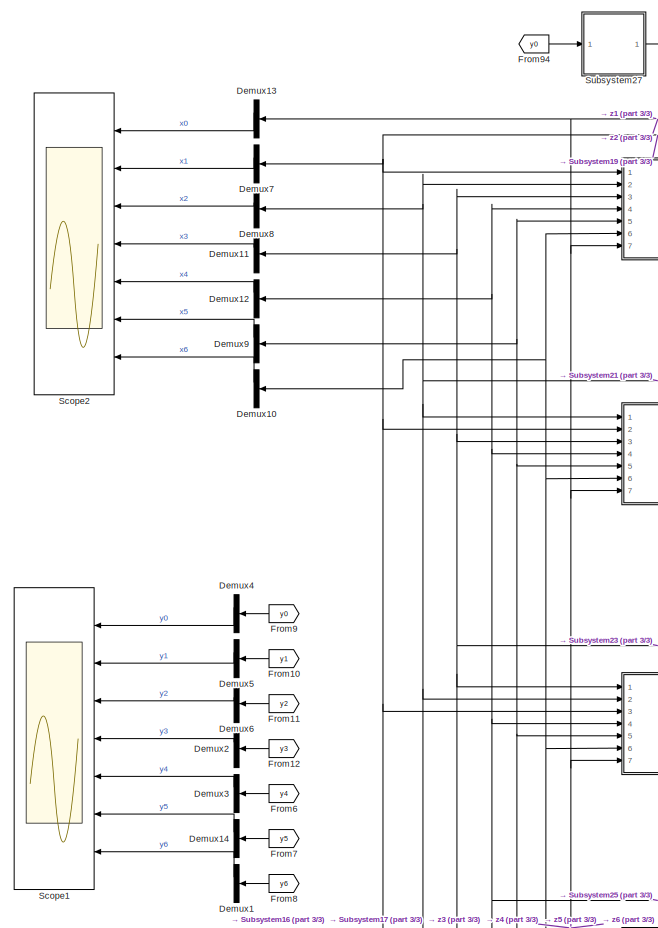
[diagram: root canvas - part 1/3, top left region]
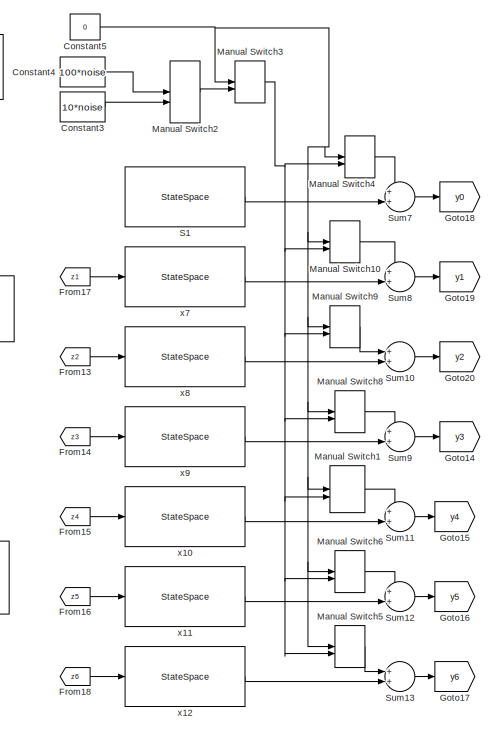
[diagram: root canvas - part 2/3, top right region]
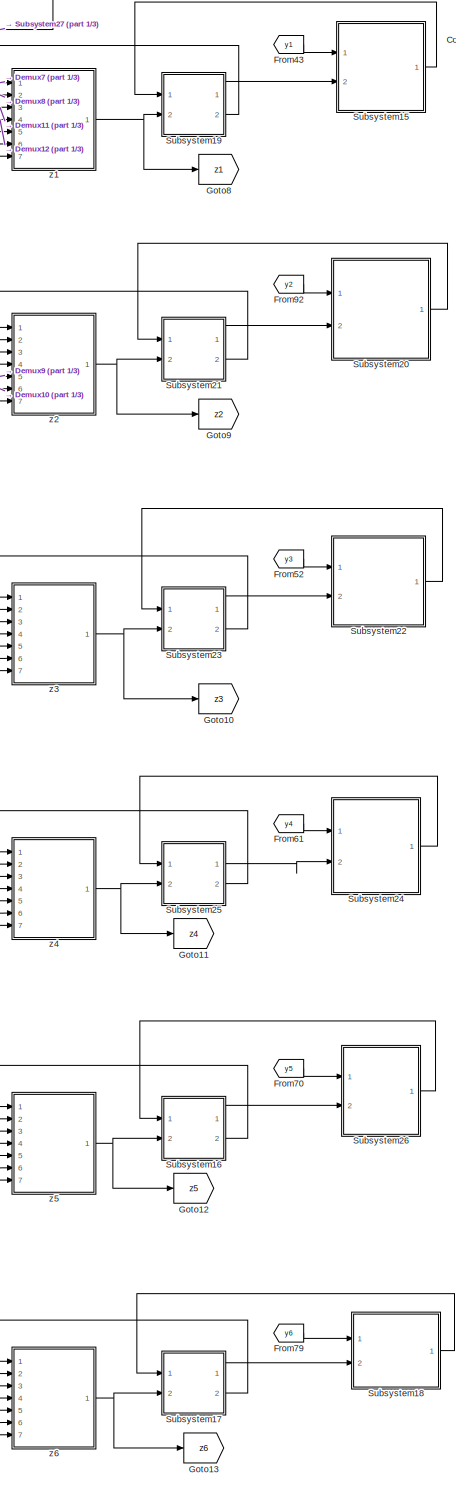
[diagram: root canvas - part 3/3, center side, full height]
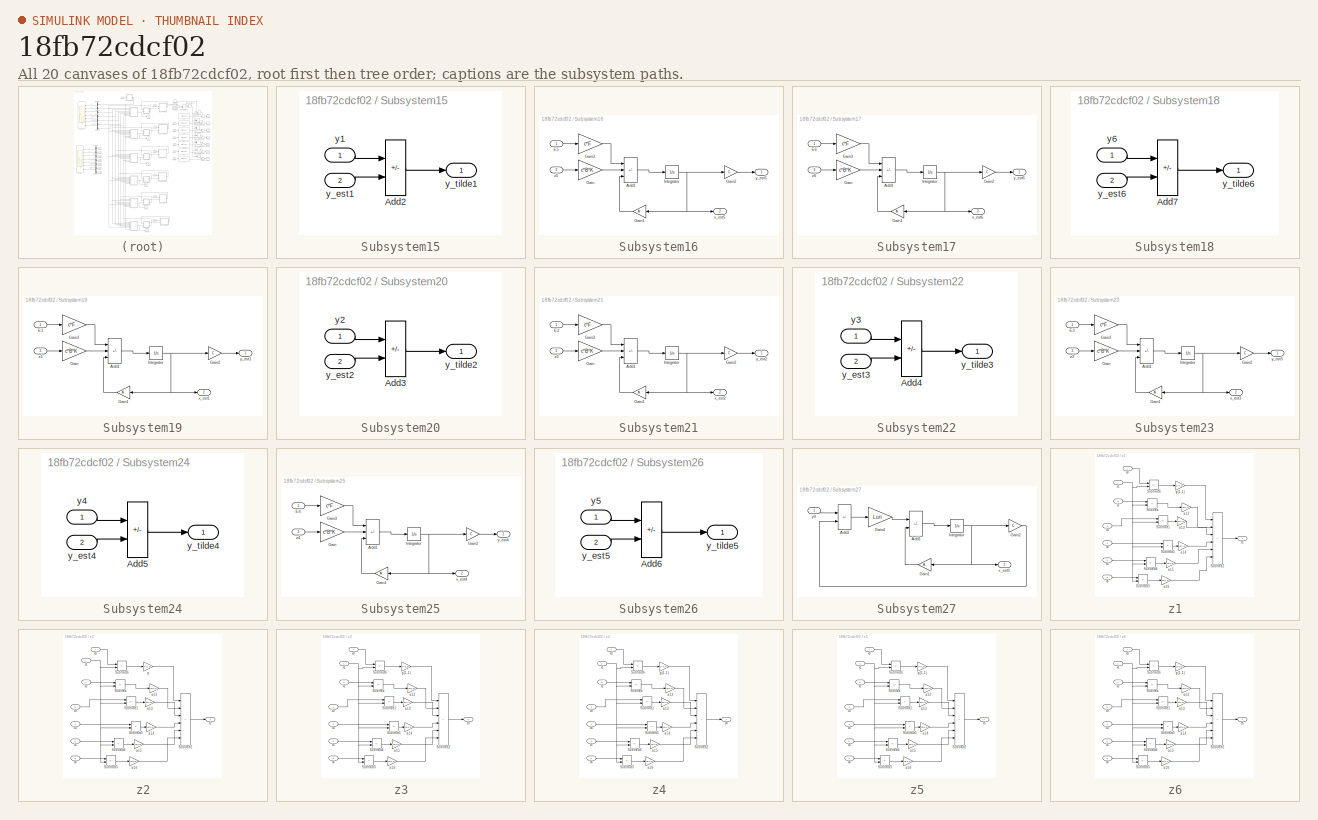
[diagram: thumbnail index - all 20 canvases of the model, root first then tree order]
MODEL slx_18fb72cdcf02
KIND model
CONFIG AbsTol = auto
CONFIG EnableMultiTasking = off
CONFIG FixedStep = auto
CONFIG MaxStep = auto
CONFIG MinStep = auto
CONFIG RelTol = 1e-3
CONFIG SampleTimeConstraint = Unconstrained
CONFIG SolverName = VariableStepAuto
CONFIG StartTime = 0.0
CONFIG StopTime = 10.0
BLOCK [Constant] Constant3
  Value = 10*noise
BLOCK [Constant] Constant4
  Value = 100*noise
BLOCK [Constant] Constant5
  Value = 0
BLOCK [Demux] Demux1
  NameLocation = top
  Outputs = 2
  Ports = [1, 2]
BLOCK [Demux] Demux10
  NameLocation = top
  Outputs = 2
  Ports = [1, 2]
BLOCK [Demux] Demux11
  NameLocation = top
  Outputs = 2
  Ports = [1, 2]
BLOCK [Demux] Demux12
  NameLocation = top
  Outputs = 2
  Ports = [1, 2]
BLOCK [Demux] Demux13
  NameLocation = top
  Outputs = 2
  Ports = [1, 2]
BLOCK [Demux] Demux14
  NameLocation = top
  Outputs = 2
  Ports = [1, 2]
BLOCK [Demux] Demux2
  NameLocation = top
  Outputs = 2
  Ports = [1, 2]
BLOCK [Demux] Demux3
  NameLocation = top
  Outputs = 2
  Ports = [1, 2]
BLOCK [Demux] Demux4
  NameLocation = top
  Outputs = 2
  Ports = [1, 2]
BLOCK [Demux] Demux5
  NameLocation = top
  Outputs = 2
  Ports = [1, 2]
BLOCK [Demux] Demux6
  NameLocation = top
  Outputs = 2
  Ports = [1, 2]
BLOCK [Demux] Demux7
  NameLocation = top
  Outputs = 2
  Ports = [1, 2]
BLOCK [Demux] Demux8
  NameLocation = top
  Outputs = 2
  Ports = [1, 2]
BLOCK [Demux] Demux9
  NameLocation = top
  Outputs = 2
  Ports = [1, 2]
BLOCK [From] From10
  GotoTag = y1
  NameLocation = top
BLOCK [From] From11
  GotoTag = y2
  NameLocation = top
BLOCK [From] From12
  GotoTag = y3
  NameLocation = top
BLOCK [From] From13
  GotoTag = z2
BLOCK [From] From14
  GotoTag = z3
BLOCK [From] From15
  GotoTag = z4
BLOCK [From] From16
  GotoTag = z5
BLOCK [From] From17
  GotoTag = z1
BLOCK [From] From18
  GotoTag = z6
BLOCK [From] From43
  GotoTag = y1
BLOCK [From] From52
  GotoTag = y3
BLOCK [From] From6
  GotoTag = y4
  NameLocation = top
BLOCK [From] From61
  GotoTag = y4
BLOCK [From] From7
  GotoTag = y5
  NameLocation = top
BLOCK [From] From70
  GotoTag = y5
BLOCK [From] From79
  GotoTag = y6
BLOCK [From] From8
  GotoTag = y6
  NameLocation = top
BLOCK [From] From9
  GotoTag = y0
  NameLocation = top
BLOCK [From] From92
  GotoTag = y2
BLOCK [From] From94
  GotoTag = y0
BLOCK [Goto] Goto10
  GotoTag = z3
BLOCK [Goto] Goto11
  GotoTag = z4
BLOCK [Goto] Goto12
  GotoTag = z5
BLOCK [Goto] Goto13
  GotoTag = z6
BLOCK [Goto] Goto14
  GotoTag = y3
BLOCK [Goto] Goto15
  GotoTag = y4
BLOCK [Goto] Goto16
  GotoTag = y5
BLOCK [Goto] Goto17
  GotoTag = y6
BLOCK [Goto] Goto18
  GotoTag = y0
BLOCK [Goto] Goto19
  GotoTag = y1
BLOCK [Goto] Goto20
  GotoTag = y2
BLOCK [Goto] Goto8
  GotoTag = z1
BLOCK [Goto] Goto9
  GotoTag = z2
BLOCK [ManualSwitch] Manual Switch1
BLOCK [ManualSwitch] Manual Switch10
  CurrentSetting = 0
BLOCK [ManualSwitch] Manual Switch2
BLOCK [ManualSwitch] Manual Switch3
  CurrentSetting = 0
BLOCK [ManualSwitch] Manual Switch4
BLOCK [ManualSwitch] Manual Switch5
BLOCK [ManualSwitch] Manual Switch6
BLOCK [ManualSwitch] Manual Switch8
BLOCK [ManualSwitch] Manual Switch9
  CurrentSetting = 0
BLOCK [StateSpace] S1
  A = A
  B = zeros(n,1)
  C = C
  D = zeros(n,1)
  InitialCondition = X0
  Ports = [1, 1]
BLOCK [Scope] Scope1
  Floating = off
  NameLocation = top
  NumInputPorts = 7
  Ports = [7]
  ScopeSpecificationString = Simulink.scopes.TimeScopeBlockCfg('CurrentConfiguration', extmgr.ConfigurationSet(extmgr.Configuration('Core','General UI',true),extmgr.Configuration('Core','Source UI',true),extmgr.Configuration('Sources','WiredSimulink',true,'DataLoggingVariableName','ScopeData1'),extmgr.Configuration('Visuals','Time Domain',true,'SerializedDisplays',{struct('MinYLimReal','-2677.65958','MaxYLimReal','6623.0896',...<+1688ch>
BLOCK [Scope] Scope2
  Floating = off
  NameLocation = top
  NumInputPorts = 7
  Ports = [7]
  ScopeSpecificationString = Simulink.scopes.TimeScopeBlockCfg('CurrentConfiguration', extmgr.ConfigurationSet(extmgr.Configuration('Core','General UI',true),extmgr.Configuration('Core','Source UI',true),extmgr.Configuration('Sources','WiredSimulink',true),extmgr.Configuration('Visuals','Time Domain',true,'SerializedDisplays',{struct('MinYLimReal','-3.78056','MaxYLimReal','33.7534','YLabelReal','','MinYLimMag','0.00000','MaxY...<+1630ch>
BLOCK [SubSystem] Subsystem15
  Ports = [2, 1]
  RequestExecContextInheritance = off
BLOCK [Sum] Subsystem15/Add2
  IconShape = rectangular
  Inputs = +-
  Ports = [2, 1]
BLOCK [Inport] Subsystem15/y1
BLOCK [Inport] Subsystem15/y_est1
  Port = 2
BLOCK [Outport] Subsystem15/y_tilde1
BLOCK [SubSystem] Subsystem16
  Ports = [2, 2]
  RequestExecContextInheritance = off
BLOCK [Sum] Subsystem16/Add1
  IconShape = rectangular
  Inputs = -++
  Ports = [3, 1]
BLOCK [Inport] Subsystem16/E5
BLOCK [Gain] Subsystem16/Gain
  Gain = c*B*K
  Multiplication = Matrix(K*u)
BLOCK [Gain] Subsystem16/Gain1
  Gain = A
  Multiplication = Matrix(K*u)
  NameLocation = top
BLOCK [Gain] Subsystem16/Gain2
  Gain = C
  Multiplication = Matrix(K*u)
BLOCK [Gain] Subsystem16/Gain3
  Gain = c*F
  Multiplication = Matrix(K*u)
BLOCK [Integrator] Subsystem16/Integrator
  Ports = [1, 1]
BLOCK [Outport] Subsystem16/x_est5
  Port = 2
BLOCK [Outport] Subsystem16/y_est5
BLOCK [Inport] Subsystem16/z5
  Port = 2
BLOCK [SubSystem] Subsystem17
  Ports = [2, 2]
  RequestExecContextInheritance = off
BLOCK [Sum] Subsystem17/Add1
  IconShape = rectangular
  Inputs = -++
  Ports = [3, 1]
BLOCK [Inport] Subsystem17/E6
BLOCK [Gain] Subsystem17/Gain
  Gain = c*B*K
  Multiplication = Matrix(K*u)
BLOCK [Gain] Subsystem17/Gain1
  Gain = A
  Multiplication = Matrix(K*u)
  NameLocation = top
BLOCK [Gain] Subsystem17/Gain2
  Gain = C
  Multiplication = Matrix(K*u)
BLOCK [Gain] Subsystem17/Gain3
  Gain = c*F
  Multiplication = Matrix(K*u)
BLOCK [Integrator] Subsystem17/Integrator
  Ports = [1, 1]
BLOCK [Outport] Subsystem17/x_est6
  Port = 2
BLOCK [Outport] Subsystem17/y_est6
BLOCK [Inport] Subsystem17/z6
  Port = 2
BLOCK [SubSystem] Subsystem18
  Ports = [2, 1]
  RequestExecContextInheritance = off
BLOCK [Sum] Subsystem18/Add7
  IconShape = rectangular
  Inputs = +-
  Ports = [2, 1]
BLOCK [Inport] Subsystem18/y6
BLOCK [Inport] Subsystem18/y_est6
  Port = 2
BLOCK [Outport] Subsystem18/y_tilde6
BLOCK [SubSystem] Subsystem19
  Ports = [2, 2]
  RequestExecContextInheritance = off
BLOCK [Sum] Subsystem19/Add1
  IconShape = rectangular
  Inputs = -++
  Ports = [3, 1]
BLOCK [Inport] Subsystem19/E1
BLOCK [Gain] Subsystem19/Gain
  Gain = c*B*K
  Multiplication = Matrix(K*u)
BLOCK [Gain] Subsystem19/Gain1
  Gain = A
  Multiplication = Matrix(K*u)
  NameLocation = top
BLOCK [Gain] Subsystem19/Gain2
  Gain = C
  Multiplication = Matrix(K*u)
BLOCK [Gain] Subsystem19/Gain3
  Gain = c*F
  Multiplication = Matrix(K*u)
BLOCK [Integrator] Subsystem19/Integrator
  Ports = [1, 1]
BLOCK [Outport] Subsystem19/x_est1
  Port = 2
BLOCK [Outport] Subsystem19/y_est1
BLOCK [Inport] Subsystem19/z1
  Port = 2
BLOCK [SubSystem] Subsystem20
  Ports = [2, 1]
  RequestExecContextInheritance = off
BLOCK [Sum] Subsystem20/Add3
  IconShape = rectangular
  Inputs = +-
  Ports = [2, 1]
BLOCK [Inport] Subsystem20/y2
BLOCK [Inport] Subsystem20/y_est2
  Port = 2
BLOCK [Outport] Subsystem20/y_tilde2
BLOCK [SubSystem] Subsystem21
  Ports = [2, 2]
  RequestExecContextInheritance = off
BLOCK [Sum] Subsystem21/Add1
  IconShape = rectangular
  Inputs = -++
  Ports = [3, 1]
BLOCK [Inport] Subsystem21/E2
BLOCK [Gain] Subsystem21/Gain
  Gain = c*B*K
  Multiplication = Matrix(K*u)
BLOCK [Gain] Subsystem21/Gain1
  Gain = A
  Multiplication = Matrix(K*u)
  NameLocation = top
BLOCK [Gain] Subsystem21/Gain2
  Gain = C
  Multiplication = Matrix(K*u)
BLOCK [Gain] Subsystem21/Gain3
  Gain = c*F
  Multiplication = Matrix(K*u)
BLOCK [Integrator] Subsystem21/Integrator
  Ports = [1, 1]
BLOCK [Outport] Subsystem21/x_est2
  Port = 2
BLOCK [Outport] Subsystem21/y_est2
BLOCK [Inport] Subsystem21/z2
  Port = 2
BLOCK [SubSystem] Subsystem22
  Ports = [2, 1]
  RequestExecContextInheritance = off
BLOCK [Sum] Subsystem22/Add4
  IconShape = rectangular
  Inputs = +-
  Ports = [2, 1]
BLOCK [Inport] Subsystem22/y3
BLOCK [Inport] Subsystem22/y_est3
  Port = 2
BLOCK [Outport] Subsystem22/y_tilde3
BLOCK [SubSystem] Subsystem23
  Ports = [2, 2]
  RequestExecContextInheritance = off
BLOCK [Sum] Subsystem23/Add1
  IconShape = rectangular
  Inputs = -++
  Ports = [3, 1]
BLOCK [Inport] Subsystem23/E3
BLOCK [Gain] Subsystem23/Gain
  Gain = c*B*K
  Multiplication = Matrix(K*u)
BLOCK [Gain] Subsystem23/Gain1
  Gain = A
  Multiplication = Matrix(K*u)
  NameLocation = top
BLOCK [Gain] Subsystem23/Gain2
  Gain = C
  Multiplication = Matrix(K*u)
BLOCK [Gain] Subsystem23/Gain3
  Gain = c*F
  Multiplication = Matrix(K*u)
BLOCK [Integrator] Subsystem23/Integrator
  Ports = [1, 1]
BLOCK [Outport] Subsystem23/x_est3
  Port = 2
BLOCK [Outport] Subsystem23/y_est3
BLOCK [Inport] Subsystem23/z3
  Port = 2
BLOCK [SubSystem] Subsystem24
  Ports = [2, 1]
  RequestExecContextInheritance = off
BLOCK [Sum] Subsystem24/Add5
  IconShape = rectangular
  Inputs = +-
  Ports = [2, 1]
BLOCK [Inport] Subsystem24/y4
BLOCK [Inport] Subsystem24/y_est4
  Port = 2
BLOCK [Outport] Subsystem24/y_tilde4
BLOCK [SubSystem] Subsystem25
  Ports = [2, 2]
  RequestExecContextInheritance = off
BLOCK [Sum] Subsystem25/Add1
  IconShape = rectangular
  Inputs = -++
  Ports = [3, 1]
BLOCK [Inport] Subsystem25/E4
BLOCK [Gain] Subsystem25/Gain
  Gain = c*B*K
  Multiplication = Matrix(K*u)
BLOCK [Gain] Subsystem25/Gain1
  Gain = A
  Multiplication = Matrix(K*u)
  NameLocation = top
BLOCK [Gain] Subsystem25/Gain2
  Gain = C
  Multiplication = Matrix(K*u)
BLOCK [Gain] Subsystem25/Gain3
  Gain = c*F
  Multiplication = Matrix(K*u)
BLOCK [Integrator] Subsystem25/Integrator
  Ports = [1, 1]
BLOCK [Outport] Subsystem25/x_est4
  Port = 2
BLOCK [Outport] Subsystem25/y_est4
BLOCK [Inport] Subsystem25/z4
  Port = 2
BLOCK [SubSystem] Subsystem26
  Ports = [2, 1]
  RequestExecContextInheritance = off
BLOCK [Sum] Subsystem26/Add6
  IconShape = rectangular
  Inputs = +-
  Ports = [2, 1]
BLOCK [Inport] Subsystem26/y5
BLOCK [Inport] Subsystem26/y_est5
  Port = 2
BLOCK [Outport] Subsystem26/y_tilde5
BLOCK [SubSystem] Subsystem27
  Ports = [1, 1]
  RequestExecContextInheritance = off
BLOCK [Sum] Subsystem27/Add1
  IconShape = rectangular
  Inputs = -+
  Ports = [2, 1]
BLOCK [Sum] Subsystem27/Add2
  IconShape = rectangular
  Inputs = -+
  Ports = [2, 1]
BLOCK [Gain] Subsystem27/Gain1
  Gain = A
  Multiplication = Matrix(K*u)
  NameLocation = top
BLOCK [Gain] Subsystem27/Gain2
  Gain = C
  Multiplication = Matrix(K*u)
BLOCK [Gain] Subsystem27/Gain4
  Gain = Lun
  Multiplication = Matrix(K*u)
BLOCK [Integrator] Subsystem27/Integrator
  InitialCondition = X0
  Ports = [1, 1]
BLOCK [Outport] Subsystem27/x_est0
BLOCK [Inport] Subsystem27/y0
BLOCK [Sum] Sum10
  Inputs = ++|
  Ports = [2, 1]
BLOCK [Sum] Sum11
  Inputs = ++|
  Ports = [2, 1]
BLOCK [Sum] Sum12
  Inputs = ++|
  Ports = [2, 1]
BLOCK [Sum] Sum13
  Inputs = ++|
  Ports = [2, 1]
BLOCK [Sum] Sum7
  Inputs = ++|
  Ports = [2, 1]
BLOCK [Sum] Sum8
  Inputs = ++|
  Ports = [2, 1]
BLOCK [Sum] Sum9
  Inputs = ++|
  Ports = [2, 1]
BLOCK [StateSpace] x10
  A = A
  B = c*B*K
  C = C
  D = zeros(n)
  InitialCondition = 0
  Ports = [1, 1]
BLOCK [StateSpace] x11
  A = A
  B = c*B*K
  C = C
  D = zeros(n)
  InitialCondition = 0
  Ports = [1, 1]
BLOCK [StateSpace] x12
  A = A
  B = c*B*K
  C = C
  D = zeros(n)
  InitialCondition = 0
  Ports = [1, 1]
BLOCK [StateSpace] x7
  A = A
  B = c*B*K
  C = C
  D = zeros(n)
  InitialCondition = 0
  Ports = [1, 1]
BLOCK [StateSpace] x8
  A = A
  B = c*B*K
  C = C
  D = zeros(n)
  InitialCondition = 0
  Ports = [1, 1]
BLOCK [StateSpace] x9
  A = A
  B = c*B*K
  C = C
  D = zeros(n)
  InitialCondition = 0
  Ports = [1, 1]
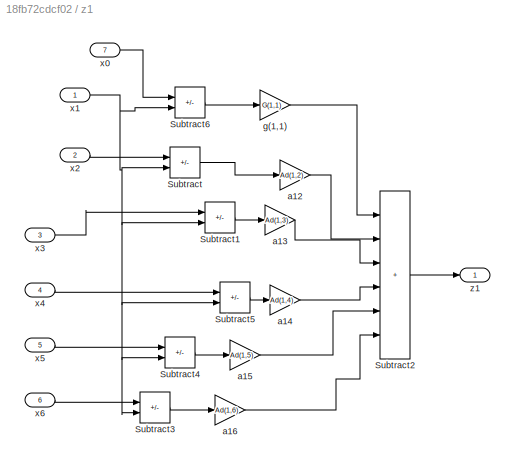
BLOCK [SubSystem] z1
  Ports = [7, 1]
  RequestExecContextInheritance = off
BLOCK [Sum] z1/Subtract
  IconShape = rectangular
  Inputs = +-
  Ports = [2, 1]
BLOCK [Sum] z1/Subtract1
  IconShape = rectangular
  Inputs = +-
  Ports = [2, 1]
BLOCK [Sum] z1/Subtract2
  IconShape = rectangular
  Inputs = ++++++
  Ports = [6, 1]
BLOCK [Sum] z1/Subtract3
  IconShape = rectangular
  Inputs = +-
  Ports = [2, 1]
BLOCK [Sum] z1/Subtract4
  IconShape = rectangular
  Inputs = +-
  Ports = [2, 1]
BLOCK [Sum] z1/Subtract5
  IconShape = rectangular
  Inputs = +-
  Ports = [2, 1]
BLOCK [Sum] z1/Subtract6
  IconShape = rectangular
  Inputs = +-
  Ports = [2, 1]
BLOCK [Gain] z1/a12
  Gain = Ad(1,2)
BLOCK [Gain] z1/a13
  Gain = Ad(1,3)
BLOCK [Gain] z1/a14
  Gain = Ad(1,4)
BLOCK [Gain] z1/a15
  Gain = Ad(1,5)
BLOCK [Gain] z1/a16
  Gain = Ad(1,6)
BLOCK [Gain] z1/g(1,1)
  Gain = G(1,1)
BLOCK [Inport] z1/x0
  Port = 7
BLOCK [Inport] z1/x1
BLOCK [Inport] z1/x2
  Port = 2
BLOCK [Inport] z1/x3
  Port = 3
BLOCK [Inport] z1/x4
  Port = 4
BLOCK [Inport] z1/x5
  Port = 5
BLOCK [Inport] z1/x6
  Port = 6
BLOCK [Outport] z1/z1
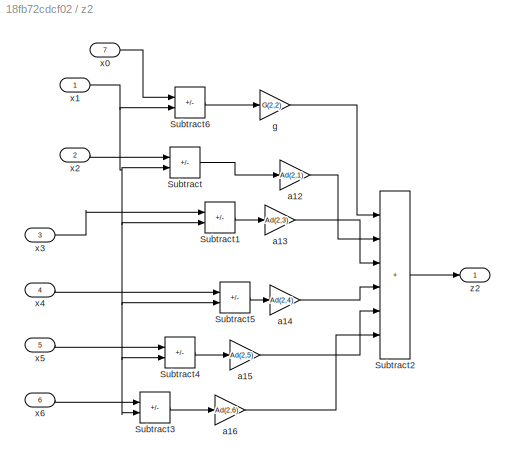
BLOCK [SubSystem] z2
  Ports = [7, 1]
  RequestExecContextInheritance = off
BLOCK [Sum] z2/Subtract
  IconShape = rectangular
  Inputs = +-
  Ports = [2, 1]
BLOCK [Sum] z2/Subtract1
  IconShape = rectangular
  Inputs = +-
  Ports = [2, 1]
BLOCK [Sum] z2/Subtract2
  IconShape = rectangular
  Inputs = ++++++
  Ports = [6, 1]
BLOCK [Sum] z2/Subtract3
  IconShape = rectangular
  Inputs = +-
  Ports = [2, 1]
BLOCK [Sum] z2/Subtract4
  IconShape = rectangular
  Inputs = +-
  Ports = [2, 1]
BLOCK [Sum] z2/Subtract5
  IconShape = rectangular
  Inputs = +-
  Ports = [2, 1]
BLOCK [Sum] z2/Subtract6
  IconShape = rectangular
  Inputs = +-
  Ports = [2, 1]
BLOCK [Gain] z2/a12
  Gain = Ad(2,1)
BLOCK [Gain] z2/a13
  Gain = Ad(2,3)
BLOCK [Gain] z2/a14
  Gain = Ad(2,4)
BLOCK [Gain] z2/a15
  Gain = Ad(2,5)
BLOCK [Gain] z2/a16
  Gain = Ad(2,6)
BLOCK [Gain] z2/g
  Gain = G(2,2)
BLOCK [Inport] z2/x0
  Port = 7
BLOCK [Inport] z2/x1
BLOCK [Inport] z2/x2
  Port = 2
BLOCK [Inport] z2/x3
  Port = 3
BLOCK [Inport] z2/x4
  Port = 4
BLOCK [Inport] z2/x5
  Port = 5
BLOCK [Inport] z2/x6
  Port = 6
BLOCK [Outport] z2/z2
BLOCK [SubSystem] z3
  Ports = [7, 1]
  RequestExecContextInheritance = off
BLOCK [Sum] z3/Subtract
  IconShape = rectangular
  Inputs = +-
  Ports = [2, 1]
BLOCK [Sum] z3/Subtract1
  IconShape = rectangular
  Inputs = +-
  Ports = [2, 1]
BLOCK [Sum] z3/Subtract2
  IconShape = rectangular
  Inputs = ++++++
  Ports = [6, 1]
BLOCK [Sum] z3/Subtract3
  IconShape = rectangular
  Inputs = +-
  Ports = [2, 1]
BLOCK [Sum] z3/Subtract4
  IconShape = rectangular
  Inputs = +-
  Ports = [2, 1]
BLOCK [Sum] z3/Subtract5
  IconShape = rectangular
  Inputs = +-
  Ports = [2, 1]
BLOCK [Sum] z3/Subtract6
  IconShape = rectangular
  Inputs = +-
  Ports = [2, 1]
BLOCK [Gain] z3/a12
  Gain = Ad(3,2)
BLOCK [Gain] z3/a13
  Gain = Ad(3,1)
BLOCK [Gain] z3/a14
  Gain = Ad(3,4)
BLOCK [Gain] z3/a15
  Gain = Ad(3,5)
BLOCK [Gain] z3/a16
  Gain = Ad(3,6)
BLOCK [Gain] z3/g(1,1)
  Gain = G(3,3)
BLOCK [Inport] z3/x0
  Port = 7
BLOCK [Inport] z3/x1
BLOCK [Inport] z3/x2
  Port = 2
BLOCK [Inport] z3/x3
  Port = 3
BLOCK [Inport] z3/x4
  Port = 4
BLOCK [Inport] z3/x5
  Port = 5
BLOCK [Inport] z3/x6
  Port = 6
BLOCK [Outport] z3/z3
BLOCK [SubSystem] z4
  Ports = [7, 1]
  RequestExecContextInheritance = off
BLOCK [Sum] z4/Subtract
  IconShape = rectangular
  Inputs = +-
  Ports = [2, 1]
BLOCK [Sum] z4/Subtract1
  IconShape = rectangular
  Inputs = +-
  Ports = [2, 1]
BLOCK [Sum] z4/Subtract2
  IconShape = rectangular
  Inputs = ++++++
  Ports = [6, 1]
BLOCK [Sum] z4/Subtract3
  IconShape = rectangular
  Inputs = +-
  Ports = [2, 1]
BLOCK [Sum] z4/Subtract4
  IconShape = rectangular
  Inputs = +-
  Ports = [2, 1]
BLOCK [Sum] z4/Subtract5
  IconShape = rectangular
  Inputs = +-
  Ports = [2, 1]
BLOCK [Sum] z4/Subtract6
  IconShape = rectangular
  Inputs = +-
  Ports = [2, 1]
BLOCK [Gain] z4/a12
  Gain = Ad(4,2)
BLOCK [Gain] z4/a13
  Gain = Ad(4,3)
BLOCK [Gain] z4/a14
  Gain = Ad(4,1)
BLOCK [Gain] z4/a15
  Gain = Ad(4,5)
BLOCK [Gain] z4/a16
  Gain = Ad(4,6)
BLOCK [Gain] z4/g(1,1)
  Gain = G(4,4)
BLOCK [Inport] z4/x0
  Port = 7
BLOCK [Inport] z4/x1
  IconDisplay = Port number and signal name
BLOCK [Inport] z4/x2
  IconDisplay = Signal name
  Port = 2
BLOCK [Inport] z4/x3
  IconDisplay = Signal name
  Port = 3
BLOCK [Inport] z4/x4
  IconDisplay = Signal name
  Port = 4
BLOCK [Inport] z4/x5
  IconDisplay = Signal name
  Port = 5
BLOCK [Inport] z4/x6
  IconDisplay = Signal name
  Port = 6
BLOCK [Outport] z4/z4
BLOCK [SubSystem] z5
  Ports = [7, 1]
  RequestExecContextInheritance = off
BLOCK [Sum] z5/Subtract
  IconShape = rectangular
  Inputs = +-
  Ports = [2, 1]
BLOCK [Sum] z5/Subtract1
  IconShape = rectangular
  Inputs = +-
  Ports = [2, 1]
BLOCK [Sum] z5/Subtract2
  IconShape = rectangular
  Inputs = ++++++
  Ports = [6, 1]
BLOCK [Sum] z5/Subtract3
  IconShape = rectangular
  Inputs = +-
  Ports = [2, 1]
BLOCK [Sum] z5/Subtract4
  IconShape = rectangular
  Inputs = +-
  Ports = [2, 1]
BLOCK [Sum] z5/Subtract5
  IconShape = rectangular
  Inputs = +-
  Ports = [2, 1]
BLOCK [Sum] z5/Subtract6
  IconShape = rectangular
  Inputs = +-
  Ports = [2, 1]
BLOCK [Gain] z5/a12
  Gain = Ad(5,2)
BLOCK [Gain] z5/a13
  Gain = Ad(5,3)
BLOCK [Gain] z5/a14
  Gain = Ad(5,4)
BLOCK [Gain] z5/a15
  Gain = Ad(5,1)
BLOCK [Gain] z5/a16
  Gain = Ad(5,6)
BLOCK [Gain] z5/g(1,1)
  Gain = G(5,5)
BLOCK [Inport] z5/x0
  Port = 7
BLOCK [Inport] z5/x1
BLOCK [Inport] z5/x2
  Port = 2
BLOCK [Inport] z5/x3
  Port = 3
BLOCK [Inport] z5/x4
  Port = 4
BLOCK [Inport] z5/x5
  Port = 5
BLOCK [Inport] z5/x6
  Port = 6
BLOCK [Outport] z5/z5
BLOCK [SubSystem] z6
  Ports = [7, 1]
  RequestExecContextInheritance = off
BLOCK [Sum] z6/Subtract
  IconShape = rectangular
  Inputs = +-
  Ports = [2, 1]
BLOCK [Sum] z6/Subtract1
  IconShape = rectangular
  Inputs = +-
  Ports = [2, 1]
BLOCK [Sum] z6/Subtract2
  IconShape = rectangular
  Inputs = ++++++
  Ports = [6, 1]
BLOCK [Sum] z6/Subtract3
  IconShape = rectangular
  Inputs = +-
  Ports = [2, 1]
BLOCK [Sum] z6/Subtract4
  IconShape = rectangular
  Inputs = +-
  Ports = [2, 1]
BLOCK [Sum] z6/Subtract5
  IconShape = rectangular
  Inputs = +-
  Ports = [2, 1]
BLOCK [Sum] z6/Subtract6
  IconShape = rectangular
  Inputs = +-
  Ports = [2, 1]
BLOCK [Gain] z6/a12
  Gain = Ad(6,2)
BLOCK [Gain] z6/a13
  Gain = Ad(6,3)
BLOCK [Gain] z6/a14
  Gain = Ad(6,4)
BLOCK [Gain] z6/a15
  Gain = Ad(6,5)
BLOCK [Gain] z6/a16
  Gain = Ad(6,1)
BLOCK [Gain] z6/g(1,1)
  Gain = G(6,6)
BLOCK [Inport] z6/x0
  Port = 7
BLOCK [Inport] z6/x1
BLOCK [Inport] z6/x2
  Port = 2
BLOCK [Inport] z6/x3
  Port = 3
BLOCK [Inport] z6/x4
  Port = 4
BLOCK [Inport] z6/x5
  Port = 5
BLOCK [Inport] z6/x6
  Port = 6
BLOCK [Outport] z6/z6
LINE Constant3:1 -> Manual Switch2:2
LINE Constant4:1 -> Manual Switch2:1
NET Constant5:1 -> Manual Switch10:1, Manual Switch1:1, Manual Switch3:1, Manual Switch4:1, Manual Switch5:1, Manual Switch6:1, Manual Switch8:1, Manual Switch9:1
LINE Demux10:1 -> Scope2:7
LINE Demux11:1 -> Scope2:4
LINE Demux12:1 -> Scope2:5
LINE Demux13:1 -> Scope2:1
LINE Demux14:1 -> Scope1:6
LINE Demux1:1 -> Scope1:7
LINE Demux2:1 -> Scope1:4
LINE Demux3:1 -> Scope1:5
LINE Demux4:1 -> Scope1:1
LINE Demux5:1 -> Scope1:2
LINE Demux6:1 -> Scope1:3
LINE Demux7:1 -> Scope2:2
LINE Demux8:1 -> Scope2:3
LINE Demux9:1 -> Scope2:6
LINE From10:1 -> Demux5:1
LINE From11:1 -> Demux6:1
LINE From12:1 -> Demux2:1
LINE From13:1 -> x8:1
LINE From14:1 -> x9:1
LINE From15:1 -> x10:1
LINE From16:1 -> x11:1
LINE From17:1 -> x7:1
LINE From18:1 -> x12:1
LINE From43:1 -> Subsystem15:1
LINE From52:1 -> Subsystem22:1
LINE From61:1 -> Subsystem24:1
LINE From6:1 -> Demux3:1
LINE From70:1 -> Subsystem26:1
LINE From79:1 -> Subsystem18:1
LINE From7:1 -> Demux14:1
LINE From8:1 -> Demux1:1
LINE From92:1 -> Subsystem20:1
LINE From94:1 -> Subsystem27:1
LINE From9:1 -> Demux4:1
LINE Manual Switch10:1 -> Sum8:1
LINE Manual Switch1:1 -> Sum11:1
LINE Manual Switch2:1 -> Manual Switch3:2
NET Manual Switch3:1 -> Manual Switch10:2, Manual Switch1:2, Manual Switch4:2, Manual Switch5:2, Manual Switch6:2, Manual Switch8:2, Manual Switch9:2
LINE Manual Switch4:1 -> Sum7:1
LINE Manual Switch5:1 -> Sum13:1
LINE Manual Switch6:1 -> Sum12:1
LINE Manual Switch8:1 -> Sum9:1
LINE Manual Switch9:1 -> Sum10:1
LINE S1:1 -> Sum7:2
LINE Subsystem15/Add2:1 -> Subsystem15/y_tilde1:1
LINE Subsystem15/y1:1 -> Subsystem15/Add2:1
LINE Subsystem15/y_est1:1 -> Subsystem15/Add2:2
LINE Subsystem15:1 -> Subsystem19:1
LINE Subsystem16/Add1:1 -> Subsystem16/Integrator:1
LINE Subsystem16/E5:1 -> Subsystem16/Gain3:1
LINE Subsystem16/Gain1:1 -> Subsystem16/Add1:3
LINE Subsystem16/Gain2:1 -> Subsystem16/y_est5:1
LINE Subsystem16/Gain3:1 -> Subsystem16/Add1:1
LINE Subsystem16/Gain:1 -> Subsystem16/Add1:2
NET Subsystem16/Integrator:1 -> Subsystem16/Gain1:1, Subsystem16/Gain2:1, Subsystem16/x_est5:1
LINE Subsystem16/z5:1 -> Subsystem16/Gain:1
LINE Subsystem16:1 -> Subsystem26:2
NET Subsystem16:2 -> Demux9:1, z1:5, z2:5, z3:5, z4:5, z5:1, z6:5
LINE Subsystem17/Add1:1 -> Subsystem17/Integrator:1
LINE Subsystem17/E6:1 -> Subsystem17/Gain3:1
LINE Subsystem17/Gain1:1 -> Subsystem17/Add1:3
LINE Subsystem17/Gain2:1 -> Subsystem17/y_est6:1
LINE Subsystem17/Gain3:1 -> Subsystem17/Add1:1
LINE Subsystem17/Gain:1 -> Subsystem17/Add1:2
NET Subsystem17/Integrator:1 -> Subsystem17/Gain1:1, Subsystem17/Gain2:1, Subsystem17/x_est6:1
LINE Subsystem17/z6:1 -> Subsystem17/Gain:1
LINE Subsystem17:1 -> Subsystem18:2
NET Subsystem17:2 -> Demux10:1, z1:6, z2:6, z3:6, z4:6, z5:6, z6:1
LINE Subsystem18/Add7:1 -> Subsystem18/y_tilde6:1
LINE Subsystem18/y6:1 -> Subsystem18/Add7:1
LINE Subsystem18/y_est6:1 -> Subsystem18/Add7:2
LINE Subsystem18:1 -> Subsystem17:1
LINE Subsystem19/Add1:1 -> Subsystem19/Integrator:1
LINE Subsystem19/E1:1 -> Subsystem19/Gain3:1
LINE Subsystem19/Gain1:1 -> Subsystem19/Add1:3
LINE Subsystem19/Gain2:1 -> Subsystem19/y_est1:1
LINE Subsystem19/Gain3:1 -> Subsystem19/Add1:1
LINE Subsystem19/Gain:1 -> Subsystem19/Add1:2
NET Subsystem19/Integrator:1 -> Subsystem19/Gain1:1, Subsystem19/Gain2:1, Subsystem19/x_est1:1
LINE Subsystem19/z1:1 -> Subsystem19/Gain:1
LINE Subsystem19:1 -> Subsystem15:2
NET Subsystem19:2 -> Demux7:1, z1:1, z2:2, z3:3, z4:4, z5:5, z6:6
LINE Subsystem20/Add3:1 -> Subsystem20/y_tilde2:1
LINE Subsystem20/y2:1 -> Subsystem20/Add3:1
LINE Subsystem20/y_est2:1 -> Subsystem20/Add3:2
LINE Subsystem20:1 -> Subsystem21:1
LINE Subsystem21/Add1:1 -> Subsystem21/Integrator:1
LINE Subsystem21/E2:1 -> Subsystem21/Gain3:1
LINE Subsystem21/Gain1:1 -> Subsystem21/Add1:3
LINE Subsystem21/Gain2:1 -> Subsystem21/y_est2:1
LINE Subsystem21/Gain3:1 -> Subsystem21/Add1:1
LINE Subsystem21/Gain:1 -> Subsystem21/Add1:2
NET Subsystem21/Integrator:1 -> Subsystem21/Gain1:1, Subsystem21/Gain2:1, Subsystem21/x_est2:1
LINE Subsystem21/z2:1 -> Subsystem21/Gain:1
LINE Subsystem21:1 -> Subsystem20:2
NET Subsystem21:2 -> Demux8:1, z1:2, z2:1, z3:2, z4:2, z5:2, z6:2
LINE Subsystem22/Add4:1 -> Subsystem22/y_tilde3:1
LINE Subsystem22/y3:1 -> Subsystem22/Add4:1
LINE Subsystem22/y_est3:1 -> Subsystem22/Add4:2
LINE Subsystem22:1 -> Subsystem23:1
LINE Subsystem23/Add1:1 -> Subsystem23/Integrator:1
LINE Subsystem23/E3:1 -> Subsystem23/Gain3:1
LINE Subsystem23/Gain1:1 -> Subsystem23/Add1:3
LINE Subsystem23/Gain2:1 -> Subsystem23/y_est3:1
LINE Subsystem23/Gain3:1 -> Subsystem23/Add1:1
LINE Subsystem23/Gain:1 -> Subsystem23/Add1:2
NET Subsystem23/Integrator:1 -> Subsystem23/Gain1:1, Subsystem23/Gain2:1, Subsystem23/x_est3:1
LINE Subsystem23/z3:1 -> Subsystem23/Gain:1
LINE Subsystem23:1 -> Subsystem22:2
NET Subsystem23:2 -> Demux11:1, z1:3, z2:3, z3:1, z4:3, z5:3, z6:3
LINE Subsystem24/Add5:1 -> Subsystem24/y_tilde4:1
LINE Subsystem24/y4:1 -> Subsystem24/Add5:1
LINE Subsystem24/y_est4:1 -> Subsystem24/Add5:2
LINE Subsystem24:1 -> Subsystem25:1
LINE Subsystem25/Add1:1 -> Subsystem25/Integrator:1
LINE Subsystem25/E4:1 -> Subsystem25/Gain3:1
LINE Subsystem25/Gain1:1 -> Subsystem25/Add1:3
LINE Subsystem25/Gain2:1 -> Subsystem25/y_est4:1
LINE Subsystem25/Gain3:1 -> Subsystem25/Add1:1
LINE Subsystem25/Gain:1 -> Subsystem25/Add1:2
NET Subsystem25/Integrator:1 -> Subsystem25/Gain1:1, Subsystem25/Gain2:1, Subsystem25/x_est4:1
LINE Subsystem25/z4:1 -> Subsystem25/Gain:1
LINE Subsystem25:1 -> Subsystem24:2
NET Subsystem25:2 -> Demux12:1, z1:4, z2:4, z3:4, z4:1, z5:4, z6:4
LINE Subsystem26/Add6:1 -> Subsystem26/y_tilde5:1
LINE Subsystem26/y5:1 -> Subsystem26/Add6:1
LINE Subsystem26/y_est5:1 -> Subsystem26/Add6:2
LINE Subsystem26:1 -> Subsystem16:1
LINE Subsystem27/Add1:1 -> Subsystem27/Integrator:1
LINE Subsystem27/Add2:1 -> Subsystem27/Gain4:1
LINE Subsystem27/Gain1:1 -> Subsystem27/Add1:2
LINE Subsystem27/Gain2:1 -> Subsystem27/Add2:2
LINE Subsystem27/Gain4:1 -> Subsystem27/Add1:1
NET Subsystem27/Integrator:1 -> Subsystem27/Gain1:1, Subsystem27/Gain2:1, Subsystem27/x_est0:1
LINE Subsystem27/y0:1 -> Subsystem27/Add2:1
NET Subsystem27:1 -> Demux13:1, z1:7, z2:7, z3:7, z4:7, z5:7, z6:7
LINE Sum10:1 -> Goto20:1
LINE Sum11:1 -> Goto15:1
LINE Sum12:1 -> Goto16:1
LINE Sum13:1 -> Goto17:1
LINE Sum7:1 -> Goto18:1
LINE Sum8:1 -> Goto19:1
LINE Sum9:1 -> Goto14:1
LINE x10:1 -> Sum11:2
LINE x11:1 -> Sum12:2
LINE x12:1 -> Sum13:2
LINE x7:1 -> Sum8:2
LINE x8:1 -> Sum10:2
LINE x9:1 -> Sum9:2
LINE z1/Subtract1:1 -> z1/a13:1
LINE z1/Subtract2:1 -> z1/z1:1
LINE z1/Subtract3:1 -> z1/a16:1
LINE z1/Subtract4:1 -> z1/a15:1
LINE z1/Subtract5:1 -> z1/a14:1
LINE z1/Subtract6:1 -> z1/g(1,1):1
LINE z1/Subtract:1 -> z1/a12:1
LINE z1/a12:1 -> z1/Subtract2:2
LINE z1/a13:1 -> z1/Subtract2:3
LINE z1/a14:1 -> z1/Subtract2:4
LINE z1/a15:1 -> z1/Subtract2:5
LINE z1/a16:1 -> z1/Subtract2:6
LINE z1/g(1,1):1 -> z1/Subtract2:1
LINE z1/x0:1 -> z1/Subtract6:1
NET z1/x1:1 -> z1/Subtract1:2, z1/Subtract3:2, z1/Subtract4:2, z1/Subtract5:2, z1/Subtract6:2, z1/Subtract:2
LINE z1/x2:1 -> z1/Subtract:1
LINE z1/x3:1 -> z1/Subtract1:1
LINE z1/x4:1 -> z1/Subtract5:1
LINE z1/x5:1 -> z1/Subtract4:1
LINE z1/x6:1 -> z1/Subtract3:1
NET z1:1 -> Goto8:1, Subsystem19:2
LINE z2/Subtract1:1 -> z2/a13:1
LINE z2/Subtract2:1 -> z2/z2:1
LINE z2/Subtract3:1 -> z2/a16:1
LINE z2/Subtract4:1 -> z2/a15:1
LINE z2/Subtract5:1 -> z2/a14:1
LINE z2/Subtract6:1 -> z2/g:1
LINE z2/Subtract:1 -> z2/a12:1
LINE z2/a12:1 -> z2/Subtract2:2
LINE z2/a13:1 -> z2/Subtract2:3
LINE z2/a14:1 -> z2/Subtract2:4
LINE z2/a15:1 -> z2/Subtract2:5
LINE z2/a16:1 -> z2/Subtract2:6
LINE z2/g:1 -> z2/Subtract2:1
LINE z2/x0:1 -> z2/Subtract6:1
NET z2/x1:1 -> z2/Subtract1:2, z2/Subtract3:2, z2/Subtract4:2, z2/Subtract5:2, z2/Subtract6:2, z2/Subtract:2
LINE z2/x2:1 -> z2/Subtract:1
LINE z2/x3:1 -> z2/Subtract1:1
LINE z2/x4:1 -> z2/Subtract5:1
LINE z2/x5:1 -> z2/Subtract4:1
LINE z2/x6:1 -> z2/Subtract3:1
NET z2:1 -> Goto9:1, Subsystem21:2
LINE z3/Subtract1:1 -> z3/a13:1
LINE z3/Subtract2:1 -> z3/z3:1
LINE z3/Subtract3:1 -> z3/a16:1
LINE z3/Subtract4:1 -> z3/a15:1
LINE z3/Subtract5:1 -> z3/a14:1
LINE z3/Subtract6:1 -> z3/g(1,1):1
LINE z3/Subtract:1 -> z3/a12:1
LINE z3/a12:1 -> z3/Subtract2:2
LINE z3/a13:1 -> z3/Subtract2:3
LINE z3/a14:1 -> z3/Subtract2:4
LINE z3/a15:1 -> z3/Subtract2:5
LINE z3/a16:1 -> z3/Subtract2:6
LINE z3/g(1,1):1 -> z3/Subtract2:1
LINE z3/x0:1 -> z3/Subtract6:1
NET z3/x1:1 -> z3/Subtract1:2, z3/Subtract3:2, z3/Subtract4:2, z3/Subtract5:2, z3/Subtract6:2, z3/Subtract:2
LINE z3/x2:1 -> z3/Subtract:1
LINE z3/x3:1 -> z3/Subtract1:1
LINE z3/x4:1 -> z3/Subtract5:1
LINE z3/x5:1 -> z3/Subtract4:1
LINE z3/x6:1 -> z3/Subtract3:1
NET z3:1 -> Goto10:1, Subsystem23:2
LINE z4/Subtract1:1 -> z4/a13:1
LINE z4/Subtract2:1 -> z4/z4:1
LINE z4/Subtract3:1 -> z4/a16:1
LINE z4/Subtract4:1 -> z4/a15:1
LINE z4/Subtract5:1 -> z4/a14:1
LINE z4/Subtract6:1 -> z4/g(1,1):1
LINE z4/Subtract:1 -> z4/a12:1
LINE z4/a12:1 -> z4/Subtract2:2
LINE z4/a13:1 -> z4/Subtract2:3
LINE z4/a14:1 -> z4/Subtract2:4
LINE z4/a15:1 -> z4/Subtract2:5
LINE z4/a16:1 -> z4/Subtract2:6
LINE z4/g(1,1):1 -> z4/Subtract2:1
LINE z4/x0:1 -> z4/Subtract6:1
NET z4/x1:1 -> z4/Subtract1:2, z4/Subtract3:2, z4/Subtract4:2, z4/Subtract5:2, z4/Subtract6:2, z4/Subtract:2
LINE z4/x2:1 -> z4/Subtract:1
LINE z4/x3:1 -> z4/Subtract1:1
LINE z4/x4:1 -> z4/Subtract5:1
LINE z4/x5:1 -> z4/Subtract4:1
LINE z4/x6:1 -> z4/Subtract3:1
NET z4:1 -> Goto11:1, Subsystem25:2
LINE z5/Subtract1:1 -> z5/a13:1
LINE z5/Subtract2:1 -> z5/z5:1
LINE z5/Subtract3:1 -> z5/a16:1
LINE z5/Subtract4:1 -> z5/a15:1
LINE z5/Subtract5:1 -> z5/a14:1
LINE z5/Subtract6:1 -> z5/g(1,1):1
LINE z5/Subtract:1 -> z5/a12:1
LINE z5/a12:1 -> z5/Subtract2:2
LINE z5/a13:1 -> z5/Subtract2:3
LINE z5/a14:1 -> z5/Subtract2:4
LINE z5/a15:1 -> z5/Subtract2:5
LINE z5/a16:1 -> z5/Subtract2:6
LINE z5/g(1,1):1 -> z5/Subtract2:1
LINE z5/x0:1 -> z5/Subtract6:1
NET z5/x1:1 -> z5/Subtract1:2, z5/Subtract3:2, z5/Subtract4:2, z5/Subtract5:2, z5/Subtract6:2, z5/Subtract:2
LINE z5/x2:1 -> z5/Subtract:1
LINE z5/x3:1 -> z5/Subtract1:1
LINE z5/x4:1 -> z5/Subtract5:1
LINE z5/x5:1 -> z5/Subtract4:1
LINE z5/x6:1 -> z5/Subtract3:1
NET z5:1 -> Goto12:1, Subsystem16:2
LINE z6/Subtract1:1 -> z6/a13:1
LINE z6/Subtract2:1 -> z6/z6:1
LINE z6/Subtract3:1 -> z6/a16:1
LINE z6/Subtract4:1 -> z6/a15:1
LINE z6/Subtract5:1 -> z6/a14:1
LINE z6/Subtract6:1 -> z6/g(1,1):1
LINE z6/Subtract:1 -> z6/a12:1
LINE z6/a12:1 -> z6/Subtract2:2
LINE z6/a13:1 -> z6/Subtract2:3
LINE z6/a14:1 -> z6/Subtract2:4
LINE z6/a15:1 -> z6/Subtract2:5
LINE z6/a16:1 -> z6/Subtract2:6
LINE z6/g(1,1):1 -> z6/Subtract2:1
LINE z6/x0:1 -> z6/Subtract6:1
NET z6/x1:1 -> z6/Subtract1:2, z6/Subtract3:2, z6/Subtract4:2, z6/Subtract5:2, z6/Subtract6:2, z6/Subtract:2
LINE z6/x2:1 -> z6/Subtract:1
LINE z6/x3:1 -> z6/Subtract1:1
LINE z6/x4:1 -> z6/Subtract5:1
LINE z6/x5:1 -> z6/Subtract4:1
LINE z6/x6:1 -> z6/Subtract3:1
NET z6:1 -> Goto13:1, Subsystem17:2
note: NET lines group one-source signal fan-out (src -> all destinations, sorted); 1:1 wires keep LINE
